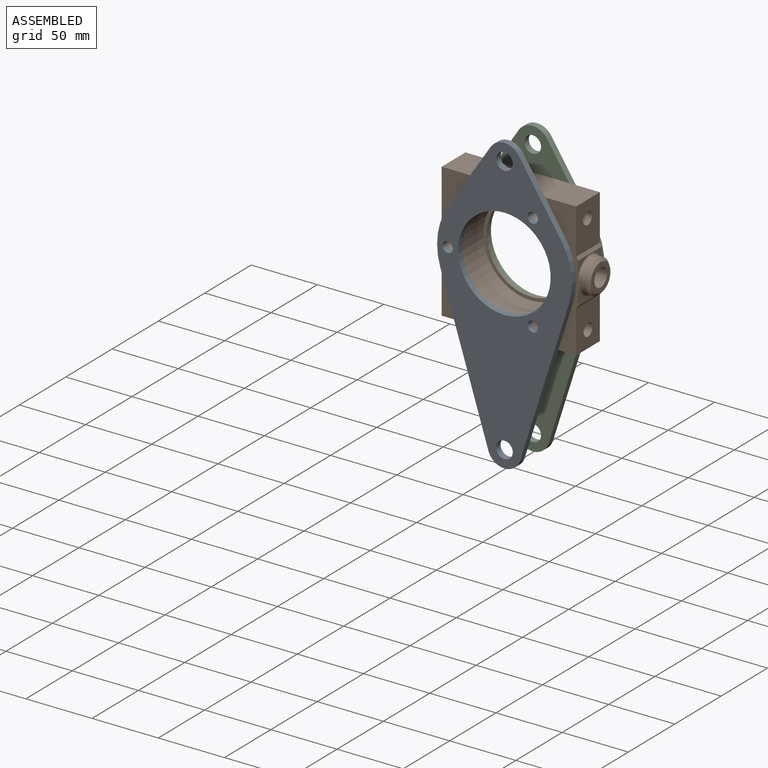
[diagram: assembled view]
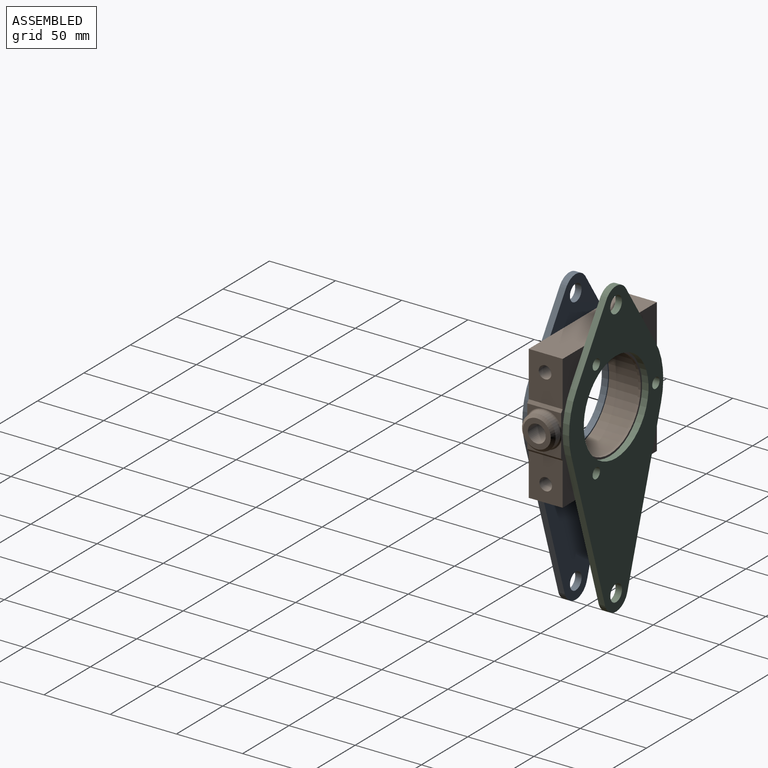
[diagram: assembled view, second angle]
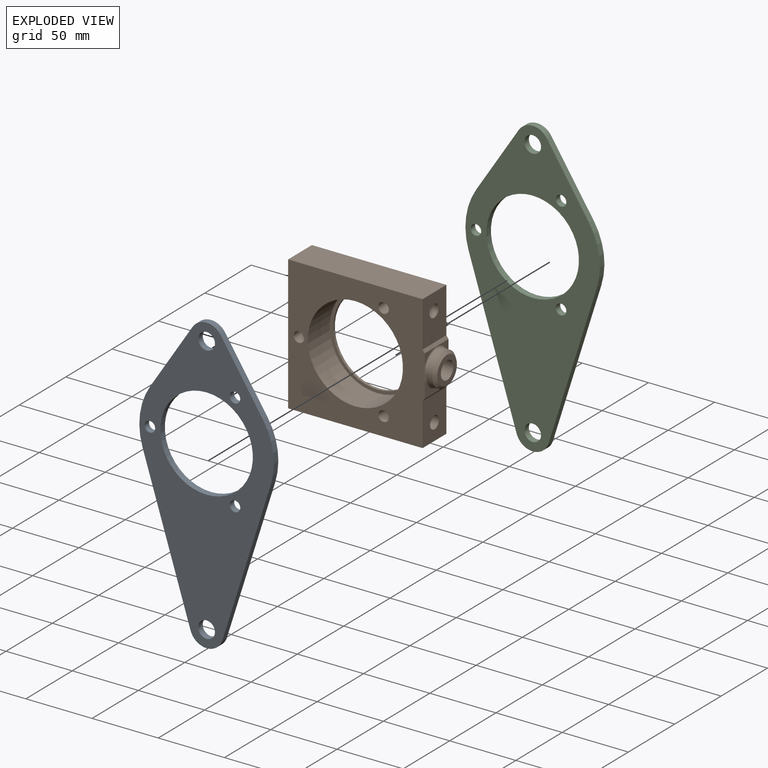
[diagram: exploded view]
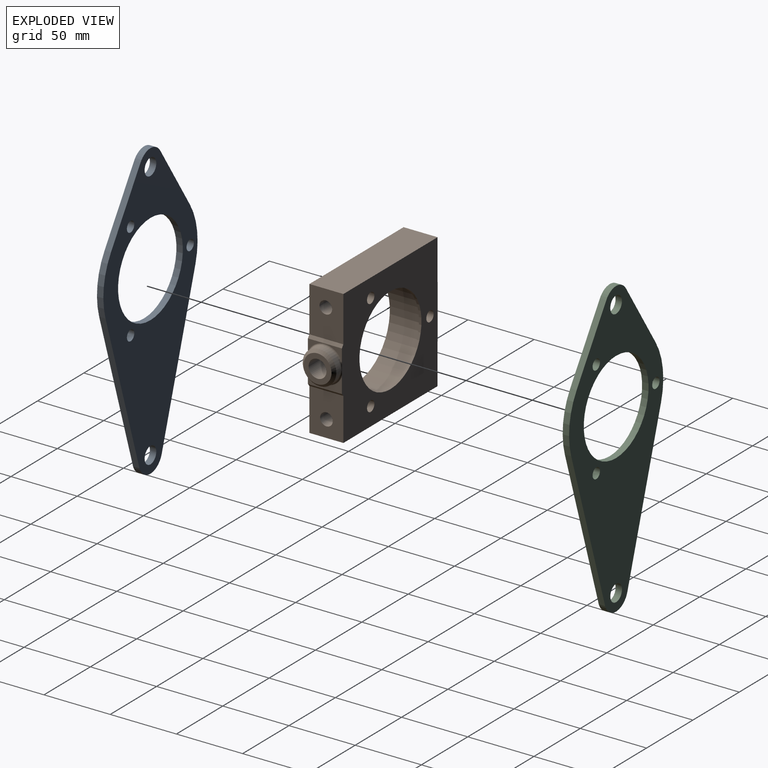
[diagram: exploded view, second angle]
ASSEMBLY  parts=3 mates=2
PART A: 16 faces, bbox 101.6x4.8x222.3 mm
  f0: plane 115.57x36.35mm, normal (0.95,0,-0.3), area 584.7mm2, adj f1,f13,f14,f15
  f1: cylinder r=50.8mm len=42.97mm, axis (0,1,0), area 216.2mm2, adj f0,f2,f14,f15
  f2: plane 49.06x31.95mm, normal (0.84,0,0.55), area 282.5mm2, adj f1,f3,f14,f15
  f3: cylinder r=12.7mm len=21.29mm, axis (0,1,0), area 121.8mm2, adj f2,f4,f14,f15
  f4: plane 49.08x31.91mm, normal (-0.84,0,0.55), area 282.5mm2, adj f3,f5,f14,f15
  f5: cylinder r=50.8mm len=42.95mm, axis (0,1,0), area 216.1mm2, adj f4,f6,f14,f15
  f6: plane 114.47x36.05mm, normal (-0.95,0,-0.3), area 579.2mm2, adj f5,f13,f14,f15
  f7: cylinder r=6.29mm len=12.57mm, axis (0,1,0), area 190.6mm2, adj f14,f15
  f8: cylinder r=6.29mm len=12.57mm, axis (0,1,0), area 190.6mm2, adj f14,f15
  f9: cylinder r=3.97mm len=7.94mm, axis (0,1,0), area 120.3mm2, adj f14,f15
  f10: cylinder r=34.92mm len=69.85mm, axis (0,1,0), area 1059mm2, adj f14,f15
  f11: cylinder r=3.98mm len=7.95mm, axis (0,1,0), area 120.5mm2, adj f14,f15
  f12: cylinder r=3.98mm len=7.95mm, axis (0,1,0), area 120.5mm2, adj f14,f15
  f13: cylinder r=12.7mm len=24.52mm, axis (0,1,0), area 160.6mm2, adj f0,f6,f14,f15
  f14: plane 222.25x101.6mm, normal (0,-1,0), area 9818.2mm2, adj f0,f1,f2,f3,f4,f5,f6,f7
  f15: plane 222.25x101.6mm, normal (0,1,0), area 9818.2mm2, adj f0,f1,f2,f3,f4,f5,f6,f7
PART B: 36 faces, bbox 111.2x29.7x101.8 mm
  f0: cylinder r=35.94mm len=71.88mm, axis (0,1,0), area 5220mm2, adj f2,f19,f27
  f1: plane 25.65x8.75mm, normal (1,0,0), area 68.5mm2, adj f4,f18,f19,f23
  f2: plane 71.88x71.88mm, normal (0,-1,0), area 542.7mm2, adj f0,f17
  f3: plane 25.65x11.29mm, normal (1,0,0), area 133.6mm2, adj f16,f18,f19,f24
  f4: plane 25.65x2.2mm, normal (0.81,0,0.59), area 69.8mm2, adj f1,f5,f18,f19
  f5: plane 34.34x25.65mm, normal (1,0,0), area 809.7mm2, adj f4,f6,f18,f19,f30
  f6: plane 50.77x25.65mm, normal (0,0,1), area 1302.4mm2, adj f5,f7,f18,f19
  f7: plane 50.77x25.65mm, normal (0,0,1), area 1302.4mm2, adj f6,f8,f18,f19
  f8: plane 50.83x25.65mm, normal (-1,0,0), area 1232.8mm2, adj f7,f9,f18,f19,f34
  f9: plane 50.86x25.68mm, normal (-1,0,0), area 1232.8mm2, adj f8,f10,f18,f19,f32
  f10: plane 50.77x25.65mm, normal (0,0,-1), area 1302.4mm2, adj f9,f11,f18,f19
  f11: plane 50.77x25.65mm, normal (0,0,-1), area 1302.4mm2, adj f10,f12,f18,f19
  f12: plane 32.13x25.66mm, normal (1,0,0), area 752.9mm2, adj f11,f16,f18,f19,f28
  f13: cylinder r=3.97mm len=25.65mm, axis (0,1,0), area 639.7mm2, adj f18,f19
  f14: cylinder r=3.97mm len=25.65mm, axis (0,1,0), area 639.7mm2, adj f18,f19
  f15: cylinder r=3.97mm len=25.65mm, axis (0,1,0), area 639.7mm2, adj f18,f19
  f16: plane 25.65x1.88mm, normal (0.76,0,-0.65), area 63.3mm2, adj f3,f12,f18,f19
  f17: cylinder r=33.45mm len=66.9mm, axis (0,1,0), area 400.4mm2, adj f2,f18
  f18: plane 103.3x101.78mm, normal (0,1,0), area 6711.4mm2, adj f1,f3,f4,f5,f6,f7,f8,f9
  f19: plane 103.3x101.78mm, normal (0,-1,0), area 6168.7mm2, adj f0,f1,f3,f4,f5,f6,f7,f8
  f20: cylinder r=12.7mm len=25.4mm, axis (-1,0,0), area 366.9mm2, adj f22,f23,f24,f25,f26
  f21: plane 21.08x21.08mm, normal (1,0,0), area 206.1mm2, adj f26,f27
  f22: bspline ~11.54x1.41mm, area 11.8mm2, adj f18,f20,f23,f24
  f23: torus R=13.97mm, axis (-1,0,0), area 61.1mm2, adj f1,f20,f22,f25
  f24: torus R=13.97mm, axis (-1,0,0), area 61.1mm2, adj f3,f20,f22,f25
  f25: bspline ~11.54x1.41mm, area 11.8mm2, adj f19,f20,f23,f24
  f26: cone r=10.54mm half-angle=45deg, axis (-1,0,0), area 222.9mm2, adj f20,f21
  f27: cylinder r=6.75mm len=25.02mm, axis (1,0,0), area 1047.1mm2, adj f0,f21
  f28: cylinder r=4.76mm len=12.66mm, axis (1,0,0), area 378.6mm2, adj f12,f29
  f29: plane 9.53x9.53mm, normal (1,0,0), area 71.3mm2, adj f28
  f30: cylinder r=4.76mm len=12.71mm, axis (1,0,0), area 380mm2, adj f5,f31
  f31: plane 9.53x9.53mm, normal (1,0,0), area 71.3mm2, adj f30
  f32: cylinder r=4.76mm len=12.66mm, axis (-1,0,0), area 378.8mm2, adj f9,f33
  f33: plane 9.53x9.53mm, normal (-1,0,0), area 71.3mm2, adj f32
  f34: cylinder r=4.76mm len=12.71mm, axis (-1,0,0), area 380mm2, adj f8,f35
  f35: plane 9.53x9.53mm, normal (-1,0,0), area 71.3mm2, adj f34
PART C: same geometry as A
PLACE A rot(axis=(0,0,1),180deg) t=(3.76,-8.22,3.15)mm
PLACE B t=(3.76,19.85,3.15)mm fixed
PLACE C rot(axis=(0,0,1),180deg) t=(3.76,22.26,3.15)mm
MATE fastened B.f0 <-> A.f10  axis (0,-1,0) through (3.76,-5.8,3.15)mm
MATE fastened B.f17 <-> C.f1  axis (0,1,0) through (3.76,19.85,3.15)mm
